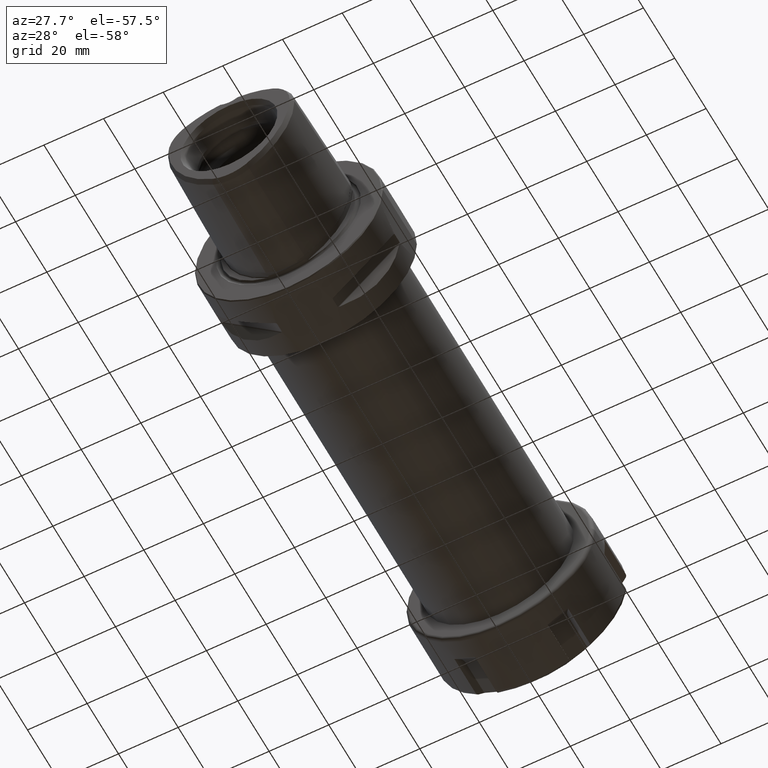
[diagram: clean part render]
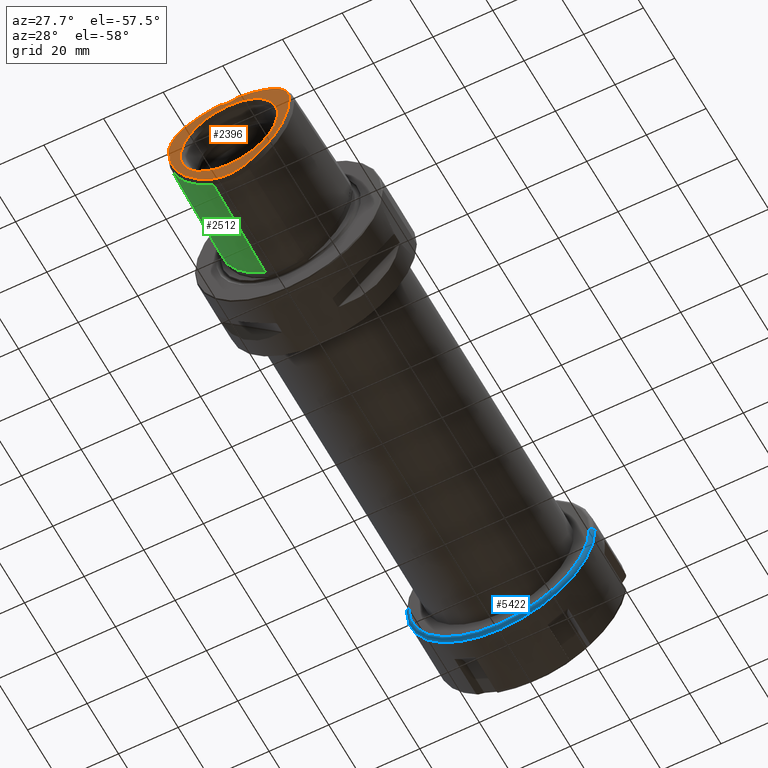
[diagram: same view with three faces highlighted in distinct colors, each labeled with its STEP entity id]
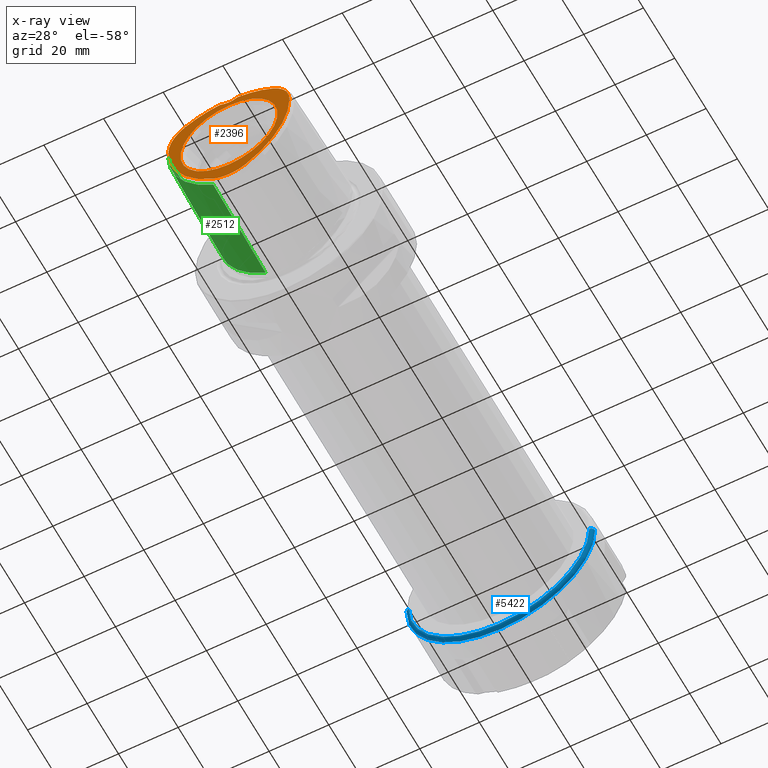
[diagram: x-ray of the same camera — body ghosted, the three highlighted faces saturated]
A machine part, auxiliary view with three faces highlighted in distinct colors.
The next image is the same camera in x-ray (body ghosted, the three faces saturated) — at least one of them is partly hidden behind the body in this view.
Their STEP definitions:

[orange] entity #2396 — the highlighted planar face has unit normal (0, 1, 0).
#414=CARTESIAN_POINT('',(0.E0,-3.8E1,-1.044974226119E1));
#415=DIRECTION('',(0.E0,-1.E0,0.E0));
#416=DIRECTION('',(5.E-1,0.E0,8.660254037844E-1));
#417=AXIS2_PLACEMENT_3D('',#414,#415,#416);
#419=CARTESIAN_POINT('',(9.049742261193E0,-3.8E1,5.224871130597E0));
#420=DIRECTION('',(0.E0,-1.E0,0.E0));
#421=DIRECTION('',(1.E0,0.E0,0.E0));
#422=AXIS2_PLACEMENT_3D('',#419,#420,#421);
#424=CARTESIAN_POINT('',(-9.049742261193E0,-3.8E1,5.224871130596E0));
#425=DIRECTION('',(0.E0,-1.E0,0.E0));
#426=DIRECTION('',(5.E-1,0.E0,-8.660254037844E-1));
#427=AXIS2_PLACEMENT_3D('',#424,#425,#426);
#429=CARTESIAN_POINT('',(9.049742261193E0,-3.8E1,5.224871130597E0));
#430=DIRECTION('',(0.E0,-1.E0,0.E0));
#431=DIRECTION('',(-1.E0,0.E0,-1.059442426042E-14));
#432=AXIS2_PLACEMENT_3D('',#429,#430,#431);
#434=CARTESIAN_POINT('',(-9.049742261193E0,-3.8E1,5.224871130596E0));
#435=DIRECTION('',(0.E0,-1.E0,0.E0));
#436=DIRECTION('',(-5.E-1,0.E0,8.660254037844E-1));
#437=AXIS2_PLACEMENT_3D('',#434,#435,#436);
#439=CARTESIAN_POINT('',(0.E0,-3.8E1,-1.044974226119E1));
#440=DIRECTION('',(0.E0,-1.E0,0.E0));
#441=DIRECTION('',(-9.890189476867E-2,0.E0,9.950971888269E-1));
#442=AXIS2_PLACEMENT_3D('',#439,#440,#441);
#444=CARTESIAN_POINT('',(0.E0,-3.8E1,0.E0));
#445=DIRECTION('',(0.E0,-1.E0,0.E0));
#446=DIRECTION('',(0.E0,0.E0,1.E0));
#447=AXIS2_PLACEMENT_3D('',#444,#445,#446);
#449=CARTESIAN_POINT('',(0.E0,-3.8E1,0.E0));
#450=DIRECTION('',(0.E0,-1.E0,0.E0));
#451=DIRECTION('',(0.E0,0.E0,-1.E0));
#452=AXIS2_PLACEMENT_3D('',#449,#450,#451);
#454=CARTESIAN_POINT('',(0.E0,-3.8E1,2.4E1));
#455=DIRECTION('',(0.E0,1.E0,0.E0));
#456=DIRECTION('',(4.836645555972E-1,0.E0,-8.752534476704E-1));
#457=AXIS2_PLACEMENT_3D('',#454,#455,#456);
#672=CARTESIAN_POINT('',(0.E0,-3.8E1,-1.044974226119E1));
#673=DIRECTION('',(0.E0,-1.E0,0.E0));
#674=DIRECTION('',(-5.E-1,0.E0,-8.660254037844E-1));
#675=AXIS2_PLACEMENT_3D('',#672,#673,#674);
#1924=CARTESIAN_POINT('',(2.901987333583E0,-3.8E1,1.874847931398E1));
#1925=CARTESIAN_POINT('',(-2.901987333583E0,-3.8E1,1.874847931398E1));
#1926=VERTEX_POINT('',#1924);
#1927=VERTEX_POINT('',#1925);
#2000=CARTESIAN_POINT('',(0.E0,-3.8E1,1.626342788115E1));
#2001=CARTESIAN_POINT('',(0.E0,-3.8E1,-1.626342788115E1));
#2002=VERTEX_POINT('',#2000);
#2003=VERTEX_POINT('',#2001);
#2008=CARTESIAN_POINT('',(5.621297865849E0,-3.8E1,-2.018611576932E1));
#2009=CARTESIAN_POINT('',(2.029233799289E1,-3.8E1,5.224871130597E0));
#2010=VERTEX_POINT('',#2008);
#2011=VERTEX_POINT('',#2009);
#2012=CARTESIAN_POINT('',(1.467104012704E1,-3.8E1,1.496124463872E1));
#2013=VERTEX_POINT('',#2012);
#2014=CARTESIAN_POINT('',(-1.467104012704E1,-3.8E1,1.496124463872E1));
#2015=CARTESIAN_POINT('',(-2.029233799289E1,-3.8E1,5.224871130596E0));
#2016=VERTEX_POINT('',#2014);
#2017=VERTEX_POINT('',#2015);
#2018=CARTESIAN_POINT('',(-5.621297865849E0,-3.8E1,-2.018611576932E1));
#2019=VERTEX_POINT('',#2018);
#2368=CARTESIAN_POINT('',(0.E0,-3.8E1,0.E0));
#2369=DIRECTION('',(0.E0,1.E0,0.E0));
#2370=DIRECTION('',(1.E0,0.E0,0.E0));
#2371=AXIS2_PLACEMENT_3D('',#2368,#2369,#2370);
#2372=PLANE('',#2371);
#2374=ORIENTED_EDGE('',*,*,#2373,.F.);
#2376=ORIENTED_EDGE('',*,*,#2375,.F.);
#2378=ORIENTED_EDGE('',*,*,#2377,.F.);
#2379=ORIENTED_EDGE('',*,*,#2358,.F.);
#2381=ORIENTED_EDGE('',*,*,#2380,.F.);
#2383=ORIENTED_EDGE('',*,*,#2382,.F.);
#2385=ORIENTED_EDGE('',*,*,#2384,.F.);
#2387=ORIENTED_EDGE('',*,*,#2386,.F.);
#2388=EDGE_LOOP('',(#2374,#2376,#2378,#2379,#2381,#2383,#2385,#2387));
#2389=FACE_OUTER_BOUND('',#2388,.F.);
#2391=ORIENTED_EDGE('',*,*,#2390,.T.);
#2393=ORIENTED_EDGE('',*,*,#2392,.T.);
#2394=EDGE_LOOP('',(#2391,#2393));
#2395=FACE_BOUND('',#2394,.F.);
#2396=ADVANCED_FACE('',(#2389,#2395),#2372,.F.);
#418=CIRCLE('',#417,2.934208025408E1);
#423=CIRCLE('',#422,1.124259573170E1);
#428=CIRCLE('',#427,2.934208025408E1);
#433=CIRCLE('',#432,2.934208025408E1);
#438=CIRCLE('',#437,1.124259573170E1);
#443=CIRCLE('',#442,2.934208025408E1);
#448=CIRCLE('',#447,1.626342788115E1);
#453=CIRCLE('',#452,1.626342788115E1);
#458=CIRCLE('',#457,6.E0);
#676=CIRCLE('',#675,1.124259573170E1);
#2358=EDGE_CURVE('',#2010,#2011,#428,.T.);
#2373=EDGE_CURVE('',#1926,#1927,#458,.T.);
#2375=EDGE_CURVE('',#2013,#1926,#418,.T.);
#2377=EDGE_CURVE('',#2011,#2013,#423,.T.);
#2380=EDGE_CURVE('',#2019,#2010,#676,.T.);
#2382=EDGE_CURVE('',#2017,#2019,#433,.T.);
#2384=EDGE_CURVE('',#2016,#2017,#438,.T.);
#2386=EDGE_CURVE('',#1927,#2016,#443,.T.);
#2390=EDGE_CURVE('',#2002,#2003,#448,.T.);
#2392=EDGE_CURVE('',#2003,#2002,#453,.T.);

[blue] entity #5422 — the highlighted toroidal blend (fillet) surface has major radius 30.25 mm and minor (blend) radius 1.25 mm.
#4262=CARTESIAN_POINT('',(1.25E0,0.E0,0.E0));
#4263=DIRECTION('',(-1.E0,0.E0,0.E0));
#4264=DIRECTION('',(0.E0,1.E0,0.E0));
#4265=AXIS2_PLACEMENT_3D('',#4262,#4263,#4264);
#4659=CARTESIAN_POINT('',(1.25E0,-3.024999999997E1,-3.128053371881E-14));
#4660=DIRECTION('',(0.E0,0.E0,1.E0));
#4661=DIRECTION('',(-1.E0,0.E0,0.E0));
#4662=AXIS2_PLACEMENT_3D('',#4659,#4660,#4661);
#4664=CARTESIAN_POINT('',(0.E0,0.E0,0.E0));
#4665=DIRECTION('',(-1.E0,0.E0,0.E0));
#4666=DIRECTION('',(0.E0,1.E0,0.E0));
#4667=AXIS2_PLACEMENT_3D('',#4664,#4665,#4666);
#4674=CARTESIAN_POINT('',(1.25E0,3.024999999997E1,0.E0));
#4675=DIRECTION('',(0.E0,0.E0,-1.E0));
#4676=DIRECTION('',(-1.E0,0.E0,0.E0));
#4677=AXIS2_PLACEMENT_3D('',#4674,#4675,#4676);
#4827=CARTESIAN_POINT('',(0.E0,3.024999999997E1,1.713825516537E-14));
#4828=CARTESIAN_POINT('',(1.719369494877E-14,-3.024999999997E1,
-3.427651033073E-14));
#4829=VERTEX_POINT('',#4827);
#4830=VERTEX_POINT('',#4828);
#4831=CARTESIAN_POINT('',(1.25E0,3.149999999997E1,1.784644752757E-14));
#4832=CARTESIAN_POINT('',(1.25E0,-3.149999999997E1,-2.170408494488E-14));
#4833=VERTEX_POINT('',#4831);
#4834=VERTEX_POINT('',#4832);
#5411=CARTESIAN_POINT('',(1.25E0,0.E0,0.E0));
#5412=DIRECTION('',(1.E0,0.E0,0.E0));
#5413=DIRECTION('',(0.E0,9.999759566163E-1,6.934420614304E-3));
#5414=AXIS2_PLACEMENT_3D('',#5411,#5412,#5413);
#5415=TOROIDAL_SURFACE('',#5414,3.024999999997E1,1.25E0);
#5416=ORIENTED_EDGE('',*,*,#5405,.T.);
#5417=ORIENTED_EDGE('',*,*,#5395,.T.);
#5418=ORIENTED_EDGE('',*,*,#5068,.F.);
#5419=ORIENTED_EDGE('',*,*,#5392,.F.);
#5420=EDGE_LOOP('',(#5416,#5417,#5418,#5419));
#5421=FACE_OUTER_BOUND('',#5420,.F.);
#5422=ADVANCED_FACE('',(#5421),#5415,.T.);
#4266=CIRCLE('',#4265,3.149999999997E1);
#4663=CIRCLE('',#4662,1.25E0);
#4668=CIRCLE('',#4667,3.024999999997E1);
#4678=CIRCLE('',#4677,1.25E0);
#5068=EDGE_CURVE('',#4833,#4834,#4266,.T.);
#5392=EDGE_CURVE('',#4829,#4833,#4678,.T.);
#5395=EDGE_CURVE('',#4830,#4834,#4663,.T.);
#5405=EDGE_CURVE('',#4829,#4830,#4668,.T.);

[green] entity #2512 — the highlighted conical surface has half-angle 1.439 deg.
#390=CARTESIAN_POINT('',(-6.485179054191E0,-2.199936910936E0,
-2.168240187923E1));
#641=DIRECTION('',(-2.511555561190E-2,9.996845546803E-1,0.E0));
#642=VECTOR('',#641,3.431088629756E1);
#643=CARTESIAN_POINT('',(-2.115836339667E1,-3.65E1,5.224871130596E0));
#644=LINE('',#643,#642);
#645=CARTESIAN_POINT('',(9.049742261193E0,-2.199936910936E0,5.224871130597E0));
#646=DIRECTION('',(0.E0,1.E0,0.E0));
#647=DIRECTION('',(-5.E-1,0.E0,-8.660254037844E-1));
#648=AXIS2_PLACEMENT_3D('',#645,#646,#647);
#650=CARTESIAN_POINT('',(9.049742261193E0,-3.65E1,5.224871130597E0));
#651=DIRECTION('',(0.E0,1.E0,0.E0));
#652=DIRECTION('',(-5.E-1,0.E0,-8.660254037844E-1));
#653=AXIS2_PLACEMENT_3D('',#650,#651,#652);
#655=DIRECTION('',(-1.255777780596E-2,9.996845546803E-1,-2.175070919006E-2));
#656=VECTOR('',#655,3.431088629756E1);
#657=CARTESIAN_POINT('',(-6.054310567741E0,-3.65E1,-2.093611576932E1));
#658=LINE('',#657,#656);
#1944=VERTEX_POINT('',#390);
#1945=CARTESIAN_POINT('',(-2.202010036957E1,-2.199936910936E0,
5.224871130596E0));
#1946=VERTEX_POINT('',#1945);
#2020=CARTESIAN_POINT('',(-6.054310567741E0,-3.65E1,-2.093611576932E1));
#2021=CARTESIAN_POINT('',(-2.115836339667E1,-3.65E1,5.224871130596E0));
#2022=VERTEX_POINT('',#2020);
#2023=VERTEX_POINT('',#2021);
#2500=CARTESIAN_POINT('',(9.049742261193E0,-1.934996845547E1,5.224871130597E0));
#2501=DIRECTION('',(0.E0,1.E0,0.E0));
#2502=DIRECTION('',(1.E0,0.E0,0.E0));
#2503=AXIS2_PLACEMENT_3D('',#2500,#2501,#2502);
#2504=CONICAL_SURFACE('',#2503,3.063897414432E1,1.439166666E0);
#2505=ORIENTED_EDGE('',*,*,#2495,.T.);
#2506=ORIENTED_EDGE('',*,*,#2482,.F.);
#2508=ORIENTED_EDGE('',*,*,#2507,.F.);
#2509=ORIENTED_EDGE('',*,*,#2316,.T.);
#2510=EDGE_LOOP('',(#2505,#2506,#2508,#2509));
#2511=FACE_OUTER_BOUND('',#2510,.F.);
#2512=ADVANCED_FACE('',(#2511),#2504,.T.);
#649=CIRCLE('',#648,3.106984263077E1);
#654=CIRCLE('',#653,3.020810565787E1);
#2316=EDGE_CURVE('',#2022,#1944,#658,.T.);
#2482=EDGE_CURVE('',#2023,#1946,#644,.T.);
#2495=EDGE_CURVE('',#1944,#1946,#649,.T.);
#2507=EDGE_CURVE('',#2022,#2023,#654,.T.);